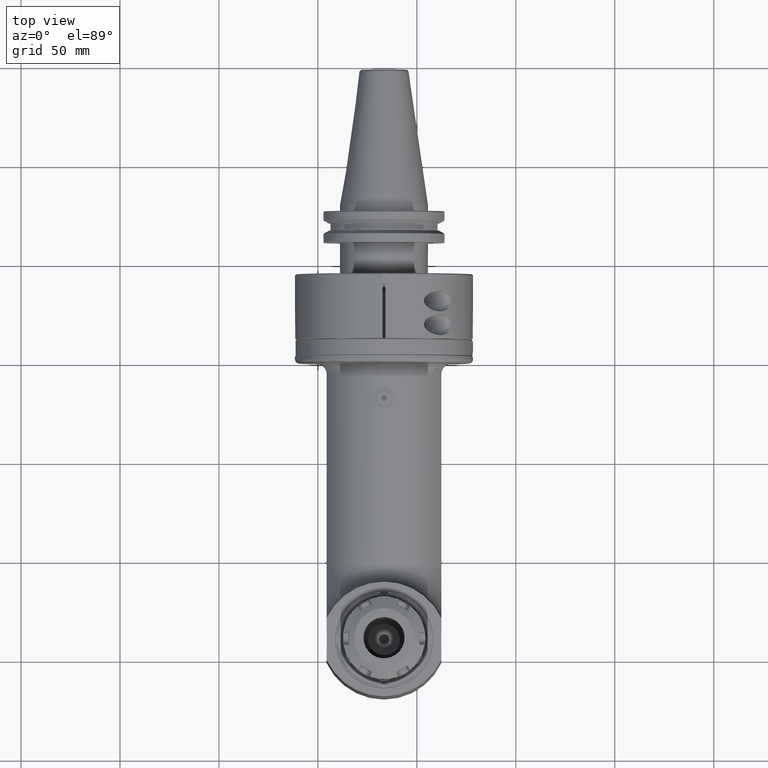
[diagram: clean part render]
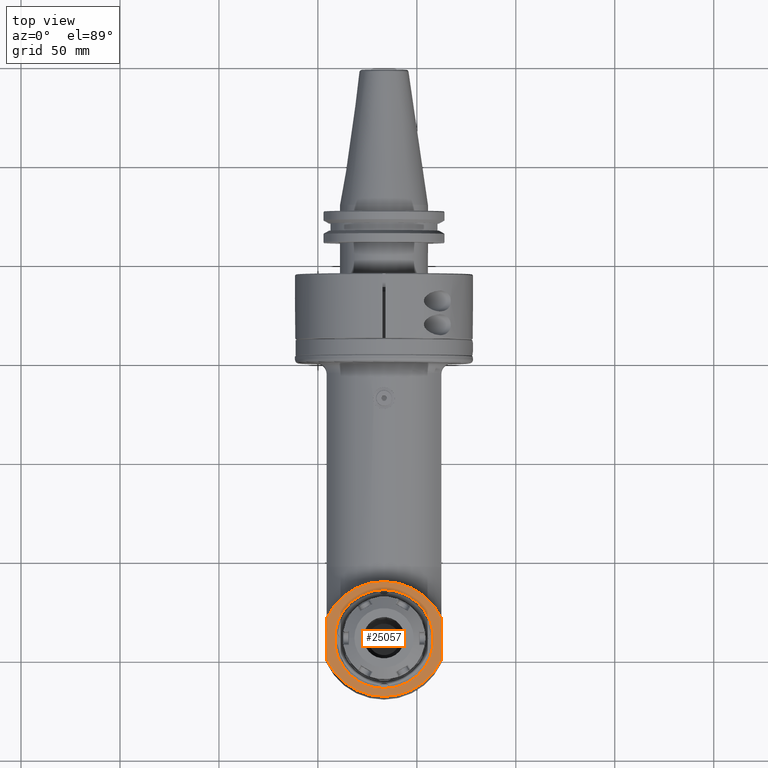
[diagram: same view with one face highlighted and labeled with its STEP entity id]
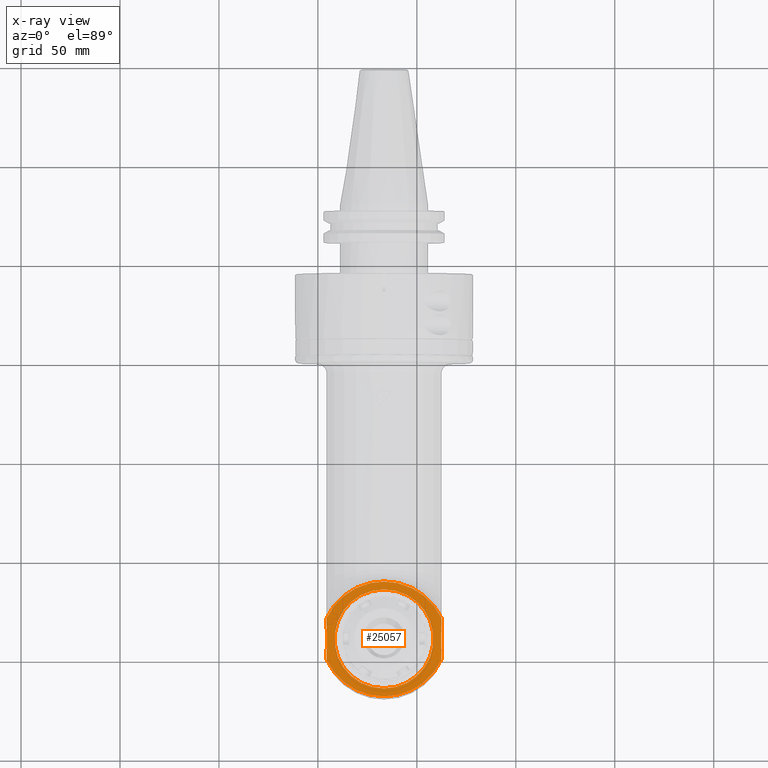
[diagram: x-ray of the same camera — body ghosted, the highlighted face saturated]
A machine part, top view. The second image highlights one B-rep face of the part: STEP entity #25057.
The next image is the same camera in x-ray: the body ghosted, the highlighted face saturated — about 0% of this face is hidden behind the body in this view.
In plain terms, the highlighted planar face has unit normal (-0, 0, -1).
Its self-contained STEP definition (entity closure, byte-faithful):
#1509=LINE('',#37313,#3441);
#1510=LINE('',#37315,#3442);
#1511=LINE('',#37319,#3443);
#1512=LINE('',#37321,#3444);
#1513=LINE('',#37323,#3445);
#1514=LINE('',#37325,#3446);
#1515=LINE('',#37327,#3447);
#1516=LINE('',#37329,#3448);
#1517=LINE('',#37331,#3449);
#1518=LINE('',#37335,#3450);
#1519=LINE('',#37337,#3451);
#1520=LINE('',#37339,#3452);
#1521=LINE('',#37341,#3453);
#1522=LINE('',#37342,#3454);
#3441=VECTOR('',#29655,0.353553390593301);
#3442=VECTOR('',#29656,5.277749258469);
#3443=VECTOR('',#29659,5.277749258469);
#3444=VECTOR('',#29660,0.353553390593276);
#3445=VECTOR('',#29661,0.212132034356001);
#3446=VECTOR('',#29662,9.7);
#3447=VECTOR('',#29663,0.212132034356001);
#3448=VECTOR('',#29664,0.353553390593301);
#3449=VECTOR('',#29665,5.277749258469);
#3450=VECTOR('',#29668,5.277749258469);
#3451=VECTOR('',#29669,0.353553390593301);
#3452=VECTOR('',#29670,0.212132034355901);
#3453=VECTOR('',#29671,9.7);
#3454=VECTOR('',#29672,0.212132034356001);
#5657=FACE_BOUND('',#7399,.T.);
#5871=FACE_OUTER_BOUND('',#7398,.T.);
#7398=EDGE_LOOP('',(#16849,#16850,#16851,#16852,#16853,#16854,#16855,#16856,
#16857,#16858,#16859,#16860,#16861,#16862,#16863,#16864));
#7399=EDGE_LOOP('',(#16865));
#9071=CIRCLE('',#26781,24.99990785642);
#9072=CIRCLE('',#26783,32.);
#9073=CIRCLE('',#26784,32.);
#10186=VERTEX_POINT('',#37307);
#10187=VERTEX_POINT('',#37311);
#10188=VERTEX_POINT('',#37312);
#10189=VERTEX_POINT('',#37314);
#10190=VERTEX_POINT('',#37316);
#10191=VERTEX_POINT('',#37318);
#10192=VERTEX_POINT('',#37320);
#10193=VERTEX_POINT('',#37322);
#10194=VERTEX_POINT('',#37324);
#10195=VERTEX_POINT('',#37326);
#10196=VERTEX_POINT('',#37328);
#10197=VERTEX_POINT('',#37330);
#10198=VERTEX_POINT('',#37332);
#10199=VERTEX_POINT('',#37334);
#10200=VERTEX_POINT('',#37336);
#10201=VERTEX_POINT('',#37338);
#10202=VERTEX_POINT('',#37340);
#12816=EDGE_CURVE('',#10186,#10186,#9071,.T.);
#12817=EDGE_CURVE('',#10187,#10188,#1509,.T.);
#12818=EDGE_CURVE('',#10187,#10189,#1510,.T.);
#12819=EDGE_CURVE('',#10190,#10189,#9072,.T.);
#12820=EDGE_CURVE('',#10191,#10190,#1511,.T.);
#12821=EDGE_CURVE('',#10191,#10192,#1512,.T.);
#12822=EDGE_CURVE('',#10192,#10193,#1513,.T.);
#12823=EDGE_CURVE('',#10193,#10194,#1514,.T.);
#12824=EDGE_CURVE('',#10194,#10195,#1515,.T.);
#12825=EDGE_CURVE('',#10195,#10196,#1516,.T.);
#12826=EDGE_CURVE('',#10197,#10196,#1517,.T.);
#12827=EDGE_CURVE('',#10198,#10197,#9073,.T.);
#12828=EDGE_CURVE('',#10198,#10199,#1518,.T.);
#12829=EDGE_CURVE('',#10200,#10199,#1519,.T.);
#12830=EDGE_CURVE('',#10201,#10200,#1520,.T.);
#12831=EDGE_CURVE('',#10202,#10201,#1521,.T.);
#12832=EDGE_CURVE('',#10188,#10202,#1522,.T.);
#16849=ORIENTED_EDGE('',*,*,#12817,.F.);
#16850=ORIENTED_EDGE('',*,*,#12818,.T.);
#16851=ORIENTED_EDGE('',*,*,#12819,.F.);
#16852=ORIENTED_EDGE('',*,*,#12820,.F.);
#16853=ORIENTED_EDGE('',*,*,#12821,.T.);
#16854=ORIENTED_EDGE('',*,*,#12822,.T.);
#16855=ORIENTED_EDGE('',*,*,#12823,.T.);
#16856=ORIENTED_EDGE('',*,*,#12824,.T.);
#16857=ORIENTED_EDGE('',*,*,#12825,.T.);
#16858=ORIENTED_EDGE('',*,*,#12826,.F.);
#16859=ORIENTED_EDGE('',*,*,#12827,.F.);
#16860=ORIENTED_EDGE('',*,*,#12828,.T.);
#16861=ORIENTED_EDGE('',*,*,#12829,.F.);
#16862=ORIENTED_EDGE('',*,*,#12830,.F.);
#16863=ORIENTED_EDGE('',*,*,#12831,.F.);
#16864=ORIENTED_EDGE('',*,*,#12832,.F.);
#16865=ORIENTED_EDGE('',*,*,#12816,.T.);
#24314=PLANE('',#26782);
#25057=ADVANCED_FACE('',(#5871,#5657),#24314,.F.);
#26781=AXIS2_PLACEMENT_3D('',#37309,#29651,#29652);
#26782=AXIS2_PLACEMENT_3D('',#37310,#29653,#29654);
#26783=AXIS2_PLACEMENT_3D('',#37317,#29657,#29658);
#26784=AXIS2_PLACEMENT_3D('',#37333,#29666,#29667);
#29651=DIRECTION('center_axis',(0.,0.,-1.));
#29652=DIRECTION('ref_axis',(-1.,0.,0.));
#29653=DIRECTION('center_axis',(0.,0.,-1.));
#29654=DIRECTION('ref_axis',(0.,1.,0.));
#29655=DIRECTION('',(-0.707106781186597,-0.707106781186498,0.));
#29656=DIRECTION('',(0.,1.,0.));
#29657=DIRECTION('center_axis',(0.,0.,-1.));
#29658=DIRECTION('ref_axis',(-0.906250000000018,0.422742164327108,0.));
#29659=DIRECTION('',(0.,1.,0.));
#29660=DIRECTION('',(0.707106781186547,-0.707106781186547,0.));
#29661=DIRECTION('',(-0.707106781186598,-0.707106781186498,0.));
#29662=DIRECTION('',(0.,-1.,0.));
#29663=DIRECTION('',(0.707106781186598,-0.707106781186498,0.));
#29664=DIRECTION('',(-0.707106781186498,-0.707106781186597,0.));
#29665=DIRECTION('',(0.,1.,0.));
#29666=DIRECTION('center_axis',(0.,0.,-1.));
#29667=DIRECTION('ref_axis',(0.906250000000018,-0.422742164327108,0.));
#29668=DIRECTION('',(0.,1.,0.));
#29669=DIRECTION('',(0.707106781186498,-0.707106781186597,0.));
#29670=DIRECTION('',(-0.707106781186598,-0.707106781186498,0.));
#29671=DIRECTION('',(0.,-1.,0.));
#29672=DIRECTION('',(0.707106781186498,-0.707106781186598,0.));
#37307=CARTESIAN_POINT('',(-4.53462092012365E-13,-201.799907856424,46.9999999999961));
#37309=CARTESIAN_POINT('Origin',(-4.565236977259E-13,-176.8,47.));
#37310=CARTESIAN_POINT('Origin',(54.,-208.011496856,47.));
#37311=CARTESIAN_POINT('',(29.,-171.55,47.));
#37312=CARTESIAN_POINT('',(28.75,-171.8,47.));
#37313=CARTESIAN_POINT('',(29.,-171.55,47.));
#37314=CARTESIAN_POINT('',(29.,-166.2722507415,47.));
#37315=CARTESIAN_POINT('',(29.,-171.55,47.));
#37316=CARTESIAN_POINT('',(-29.,-166.2722507415,47.));
#37317=CARTESIAN_POINT('Origin',(0.,-179.8,47.));
#37318=CARTESIAN_POINT('',(-29.,-171.55,47.));
#37319=CARTESIAN_POINT('',(-29.,-171.55,47.));
#37320=CARTESIAN_POINT('',(-28.75,-171.8,47.));
#37321=CARTESIAN_POINT('',(-29.,-171.55,47.));
#37322=CARTESIAN_POINT('',(-28.9,-171.95,47.));
#37323=CARTESIAN_POINT('',(-28.75,-171.8,47.));
#37324=CARTESIAN_POINT('',(-28.9,-181.65,47.));
#37325=CARTESIAN_POINT('',(-28.9,-171.95,47.));
#37326=CARTESIAN_POINT('',(-28.75,-181.8,47.));
#37327=CARTESIAN_POINT('',(-28.9,-181.65,47.));
#37328=CARTESIAN_POINT('',(-29.,-182.05,47.));
#37329=CARTESIAN_POINT('',(-28.75,-181.8,47.));
#37330=CARTESIAN_POINT('',(-29.,-187.3277492585,47.));
#37331=CARTESIAN_POINT('',(-29.,-187.3277492585,47.));
#37332=CARTESIAN_POINT('',(29.,-187.3277492585,47.));
#37333=CARTESIAN_POINT('Origin',(0.,-173.8,47.));
#37334=CARTESIAN_POINT('',(29.,-182.05,47.));
#37335=CARTESIAN_POINT('',(29.,-187.3277492585,47.));
#37336=CARTESIAN_POINT('',(28.75,-181.8,47.));
#37337=CARTESIAN_POINT('',(28.75,-181.8,47.));
#37338=CARTESIAN_POINT('',(28.9,-181.65,47.));
#37339=CARTESIAN_POINT('',(28.9,-181.65,47.));
#37340=CARTESIAN_POINT('',(28.9,-171.95,47.));
#37341=CARTESIAN_POINT('',(28.9,-171.95,47.));
#37342=CARTESIAN_POINT('',(28.75,-171.8,47.));